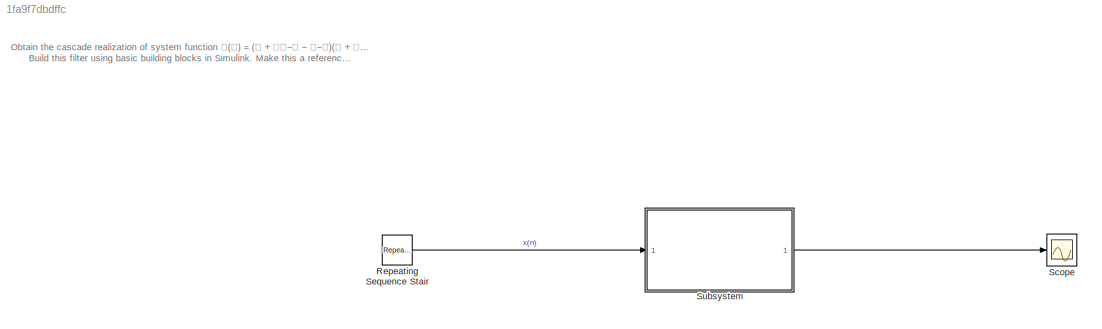
MODEL slx_1fa9f7dbdffc
KIND model
CONFIG AbsTol = auto
CONFIG EnableMultiTasking = off
CONFIG FixedStep = auto
CONFIG MaxStep = auto
CONFIG MinStep = auto
CONFIG RelTol = 1e-3
CONFIG SampleTimeConstraint = Unconstrained
CONFIG Solver = VariableStepAuto
CONFIG SolverName = VariableStepAuto
CONFIG StartTime = 0.0
CONFIG StopTime = 10.0
BLOCK [Reference] Repeating Sequence Stair  REF=simulink/Sources/Repeating
Sequence
Stair
  Ports = [0, 1]
  SourceBlock = simulink/Sources/Repeating\nSequence\nStair
  SourceProductBaseCode = SL
  SourceType = Repeating Sequence Stair
BLOCK [Scope] Scope
  Floating = off
  NumInputPorts = 1
  Ports = [1]
  ScopeSpecificationString = Simulink.scopes.TimeScopeBlockCfg('CurrentConfiguration', extmgr.ConfigurationSet(extmgr.Configuration('Core','General UI',true),extmgr.Configuration('Core','Source UI',true),extmgr.Configuration('Sources','WiredSimulink',true),extmgr.Configuration('Visuals','Time Domain',true,'SerializedDisplays',{struct('MinYLimReal','-2.9','MaxYLimReal','8.1','YLabelReal','','MinYLimMag','0.00000','MaxYLimMag',...<+1300ch>
BLOCK [ModelReference] Subsystem
  ModelNameDialog = Subsystem
  ModelReferenceVersion = 1.6
  Ports = [1, 1]
ANNOTATION (root): Obtain the cascade realization of system function 𝐇(𝐳) = (𝟏 + 𝟐𝐳−𝟏 − 𝐳−𝟐)(𝟏 + 𝐳−𝟏 − 𝐳−𝟐) Build this filter using basic building blocks in Simulink. Make this a reference model.
LINE Repeating Sequence Stair:1 -> Subsystem:1
LINE Subsystem:1 -> Scope:1
